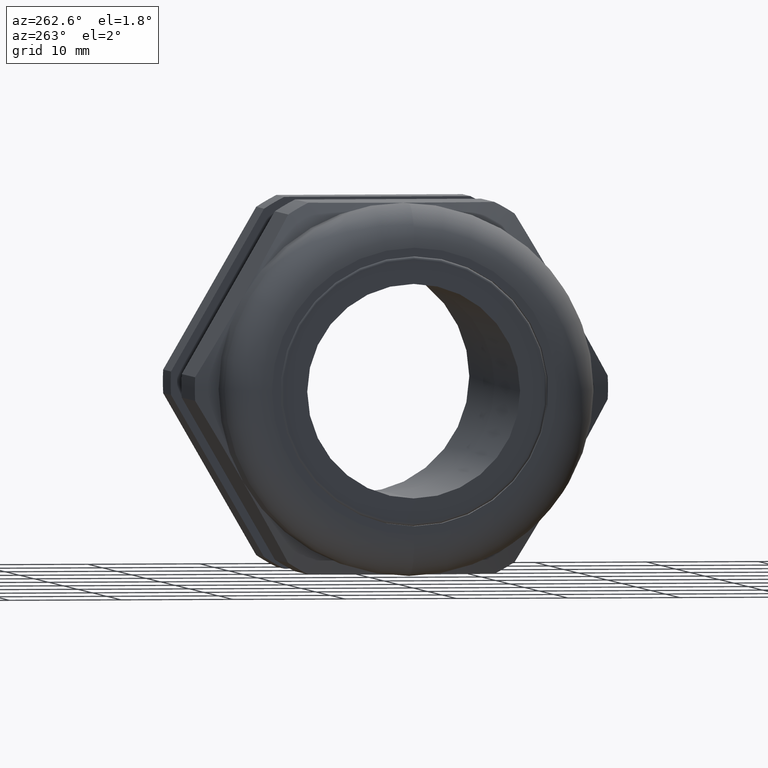
[diagram: clean part render]
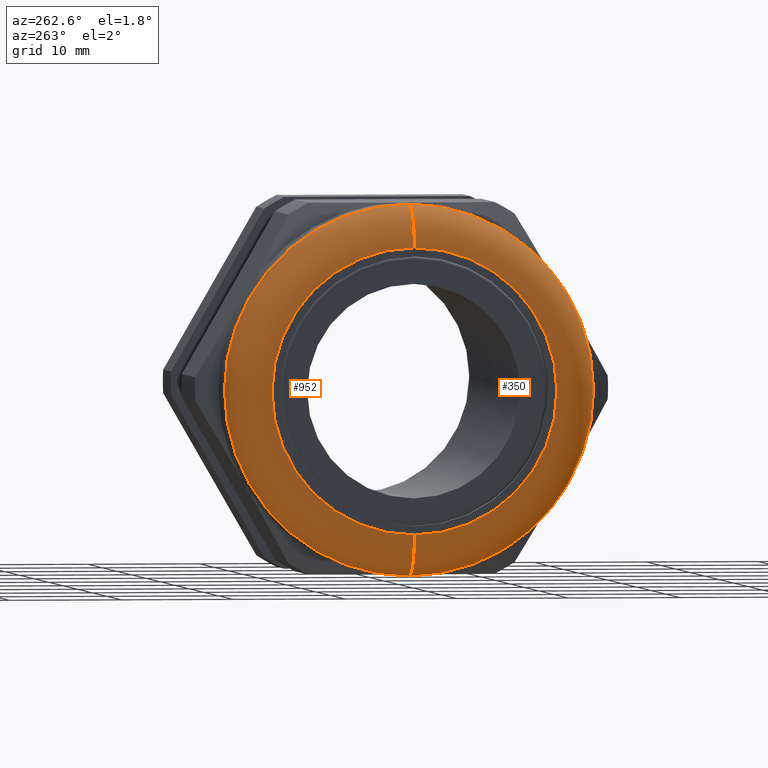
[diagram: same view with one multi-face feature highlighted, each face labeled with its STEP entity id]
A machine part, auxiliary view. The highlighted faces form ONE feature: a constant-radius fillet chain: 2 tangent blend faces with common blend radius 3.7592 mm. The faces share edges in the B-rep.
Their STEP definitions:
[1] entity #952 (Torus):
#872 = EDGE_CURVE ( 'NONE', #974, #975, #2613, .T. ) ;
#922 = VERTEX_POINT ( 'NONE', #2705 ) ;
#923 = ORIENTED_EDGE ( 'NONE', *, *, #924, .F. ) ;
#924 = EDGE_CURVE ( 'NONE', #930, #922, #2766, .T. ) ;
#930 = VERTEX_POINT ( 'NONE', #2751 ) ;
#931 = ORIENTED_EDGE ( 'NONE', *, *, #932, .F. ) ;
#932 = EDGE_CURVE ( 'NONE', #975, #930, #2749, .T. ) ;
#952 = ADVANCED_FACE ( 'NONE', ( #2830 ), #2828, .T. ) ;
#953 = EDGE_LOOP ( 'NONE', ( #954, #976, #923, #931 ) ) ;
#954 = ORIENTED_EDGE ( 'NONE', *, *, #872, .F. ) ;
#974 = VERTEX_POINT ( 'NONE', #2852 ) ;
#975 = VERTEX_POINT ( 'NONE', #2851 ) ;
#976 = ORIENTED_EDGE ( 'NONE', *, *, #977, .T. ) ;
#977 = EDGE_CURVE ( 'NONE', #974, #922, #2850, .T. ) ;
#2613 = CIRCLE ( 'NONE', #2671, 0.5019999999999998900 ) ;
#2668 = DIRECTION ( 'NONE',  ( 0.0000000000000000000, 0.0000000000000000000, -1.000000000000000000 ) ) ;
#2669 = DIRECTION ( 'NONE',  ( -1.000000000000000000, 0.0000000000000000000, 0.0000000000000000000 ) ) ;
#2670 = CARTESIAN_POINT ( 'NONE',  ( -1.220000000000000000, 0.0000000000000000000, 0.0000000000000000000 ) ) ;
#2671 = AXIS2_PLACEMENT_3D ( 'NONE', #2670, #2669, #2668 ) ;
#2705 = CARTESIAN_POINT ( 'NONE',  ( -1.071999999999999800, 0.0000000000000000000, 0.6499999999999999100 ) ) ;
#2745 = DIRECTION ( 'NONE',  ( 0.0000000000000000000, 0.0000000000000000000, -1.000000000000000000 ) ) ;
#2746 = DIRECTION ( 'NONE',  ( 0.0000000000000000000, -1.000000000000000000, 0.0000000000000000000 ) ) ;
#2747 = CARTESIAN_POINT ( 'NONE',  ( -1.071999999999999800, 0.0000000000000000000, -0.5019999999999998900 ) ) ;
#2748 = AXIS2_PLACEMENT_3D ( 'NONE', #2747, #2746, #2745 ) ;
#2749 = CIRCLE ( 'NONE', #2748, 0.1480000000000000200 ) ;
#2751 = CARTESIAN_POINT ( 'NONE',  ( -1.071999999999999800, 7.960204194457794200E-017, -0.6499999999999999100 ) ) ;
#2762 = DIRECTION ( 'NONE',  ( 0.0000000000000000000, 0.0000000000000000000, -1.000000000000000000 ) ) ;
#2763 = DIRECTION ( 'NONE',  ( 1.000000000000000000, 0.0000000000000000000, 0.0000000000000000000 ) ) ;
#2764 = CARTESIAN_POINT ( 'NONE',  ( -1.071999999999999800, 0.0000000000000000000, 0.0000000000000000000 ) ) ;
#2765 = AXIS2_PLACEMENT_3D ( 'NONE', #2764, #2763, #2762 ) ;
#2766 = CIRCLE ( 'NONE', #2765, 0.6499999999999999100 ) ;
#2825 = DIRECTION ( 'NONE',  ( 0.0000000000000000000, 0.0000000000000000000, -1.000000000000000000 ) ) ;
#2826 = DIRECTION ( 'NONE',  ( 1.000000000000000000, 0.0000000000000000000, 0.0000000000000000000 ) ) ;
#2827 = AXIS2_PLACEMENT_3D ( 'NONE', #2829, #2826, #2825 ) ;
#2828 = TOROIDAL_SURFACE ( 'NONE', #2827, 0.5019999999999998900, 0.1480000000000000500 ) ;
#2829 = CARTESIAN_POINT ( 'NONE',  ( -1.071999999999999800, 0.0000000000000000000, 0.0000000000000000000 ) ) ;
#2830 = FACE_OUTER_BOUND ( 'NONE', #953, .T. ) ;
#2846 = DIRECTION ( 'NONE',  ( 0.0000000000000000000, 1.224646799147353900E-016, 1.000000000000000000 ) ) ;
#2847 = DIRECTION ( 'NONE',  ( 0.0000000000000000000, 1.000000000000000000, -1.224646799147353200E-016 ) ) ;
#2848 = CARTESIAN_POINT ( 'NONE',  ( -1.071999999999999800, 6.147726931719711800E-017, 0.5019999999999998900 ) ) ;
#2849 = AXIS2_PLACEMENT_3D ( 'NONE', #2848, #2847, #2846 ) ;
#2850 = CIRCLE ( 'NONE', #2849, 0.1480000000000000200 ) ;
#2851 = CARTESIAN_POINT ( 'NONE',  ( -1.220000000000000000, 0.0000000000000000000, -0.5019999999999998900 ) ) ;
#2852 = CARTESIAN_POINT ( 'NONE',  ( -1.220000000000000000, 7.053965563088752400E-017, 0.5019999999999998900 ) ) ;
[2] entity #350 (Torus):
#310 = EDGE_CURVE ( 'NONE', #922, #930, #1649, .T. ) ;
#350 = ADVANCED_FACE ( 'NONE', ( #1731 ), #1730, .T. ) ;
#351 = EDGE_LOOP ( 'NONE', ( #352, #353, #354, #355 ) ) ;
#352 = ORIENTED_EDGE ( 'NONE', *, *, #977, .F. ) ;
#353 = ORIENTED_EDGE ( 'NONE', *, *, #1058, .F. ) ;
#354 = ORIENTED_EDGE ( 'NONE', *, *, #932, .T. ) ;
#355 = ORIENTED_EDGE ( 'NONE', *, *, #310, .F. ) ;
#922 = VERTEX_POINT ( 'NONE', #2705 ) ;
#930 = VERTEX_POINT ( 'NONE', #2751 ) ;
#932 = EDGE_CURVE ( 'NONE', #975, #930, #2749, .T. ) ;
#974 = VERTEX_POINT ( 'NONE', #2852 ) ;
#975 = VERTEX_POINT ( 'NONE', #2851 ) ;
#977 = EDGE_CURVE ( 'NONE', #974, #922, #2850, .T. ) ;
#1058 = EDGE_CURVE ( 'NONE', #975, #974, #2966, .T. ) ;
#1646 = DIRECTION ( 'NONE',  ( 0.0000000000000000000, 0.0000000000000000000, -1.000000000000000000 ) ) ;
#1647 = DIRECTION ( 'NONE',  ( 1.000000000000000000, 0.0000000000000000000, 0.0000000000000000000 ) ) ;
#1648 = AXIS2_PLACEMENT_3D ( 'NONE', #1653, #1647, #1646 ) ;
#1649 = CIRCLE ( 'NONE', #1648, 0.6499999999999999100 ) ;
#1653 = CARTESIAN_POINT ( 'NONE',  ( -1.071999999999999800, 0.0000000000000000000, 0.0000000000000000000 ) ) ;
#1727 = DIRECTION ( 'NONE',  ( 0.0000000000000000000, 0.0000000000000000000, -1.000000000000000000 ) ) ;
#1728 = DIRECTION ( 'NONE',  ( 1.000000000000000000, 0.0000000000000000000, 0.0000000000000000000 ) ) ;
#1729 = AXIS2_PLACEMENT_3D ( 'NONE', #1735, #1728, #1727 ) ;
#1730 = TOROIDAL_SURFACE ( 'NONE', #1729, 0.5019999999999998900, 0.1480000000000000500 ) ;
#1731 = FACE_OUTER_BOUND ( 'NONE', #351, .T. ) ;
#1735 = CARTESIAN_POINT ( 'NONE',  ( -1.071999999999999800, 0.0000000000000000000, 0.0000000000000000000 ) ) ;
#2705 = CARTESIAN_POINT ( 'NONE',  ( -1.071999999999999800, 0.0000000000000000000, 0.6499999999999999100 ) ) ;
#2745 = DIRECTION ( 'NONE',  ( 0.0000000000000000000, 0.0000000000000000000, -1.000000000000000000 ) ) ;
#2746 = DIRECTION ( 'NONE',  ( 0.0000000000000000000, -1.000000000000000000, 0.0000000000000000000 ) ) ;
#2747 = CARTESIAN_POINT ( 'NONE',  ( -1.071999999999999800, 0.0000000000000000000, -0.5019999999999998900 ) ) ;
#2748 = AXIS2_PLACEMENT_3D ( 'NONE', #2747, #2746, #2745 ) ;
#2749 = CIRCLE ( 'NONE', #2748, 0.1480000000000000200 ) ;
#2751 = CARTESIAN_POINT ( 'NONE',  ( -1.071999999999999800, 7.960204194457794200E-017, -0.6499999999999999100 ) ) ;
#2846 = DIRECTION ( 'NONE',  ( 0.0000000000000000000, 1.224646799147353900E-016, 1.000000000000000000 ) ) ;
#2847 = DIRECTION ( 'NONE',  ( 0.0000000000000000000, 1.000000000000000000, -1.224646799147353200E-016 ) ) ;
#2848 = CARTESIAN_POINT ( 'NONE',  ( -1.071999999999999800, 6.147726931719711800E-017, 0.5019999999999998900 ) ) ;
#2849 = AXIS2_PLACEMENT_3D ( 'NONE', #2848, #2847, #2846 ) ;
#2850 = CIRCLE ( 'NONE', #2849, 0.1480000000000000200 ) ;
#2851 = CARTESIAN_POINT ( 'NONE',  ( -1.220000000000000000, 0.0000000000000000000, -0.5019999999999998900 ) ) ;
#2852 = CARTESIAN_POINT ( 'NONE',  ( -1.220000000000000000, 7.053965563088752400E-017, 0.5019999999999998900 ) ) ;
#2958 = DIRECTION ( 'NONE',  ( 0.0000000000000000000, 0.0000000000000000000, -1.000000000000000000 ) ) ;
#2959 = DIRECTION ( 'NONE',  ( -1.000000000000000000, 0.0000000000000000000, 0.0000000000000000000 ) ) ;
#2960 = CARTESIAN_POINT ( 'NONE',  ( -1.220000000000000000, 0.0000000000000000000, 0.0000000000000000000 ) ) ;
#2961 = AXIS2_PLACEMENT_3D ( 'NONE', #2960, #2959, #2958 ) ;
#2966 = CIRCLE ( 'NONE', #2961, 0.5019999999999998900 ) ;